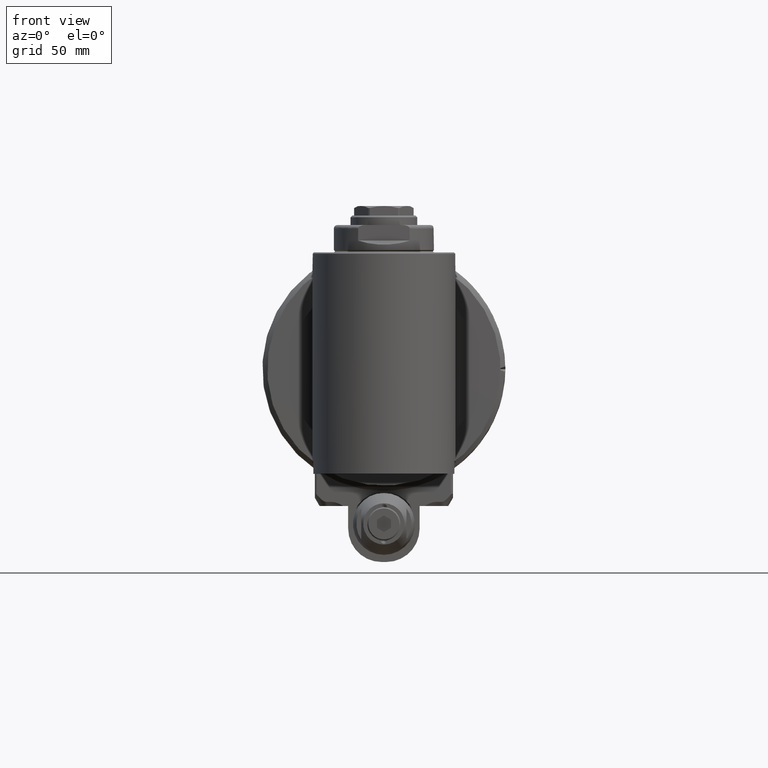
[diagram: clean part render]
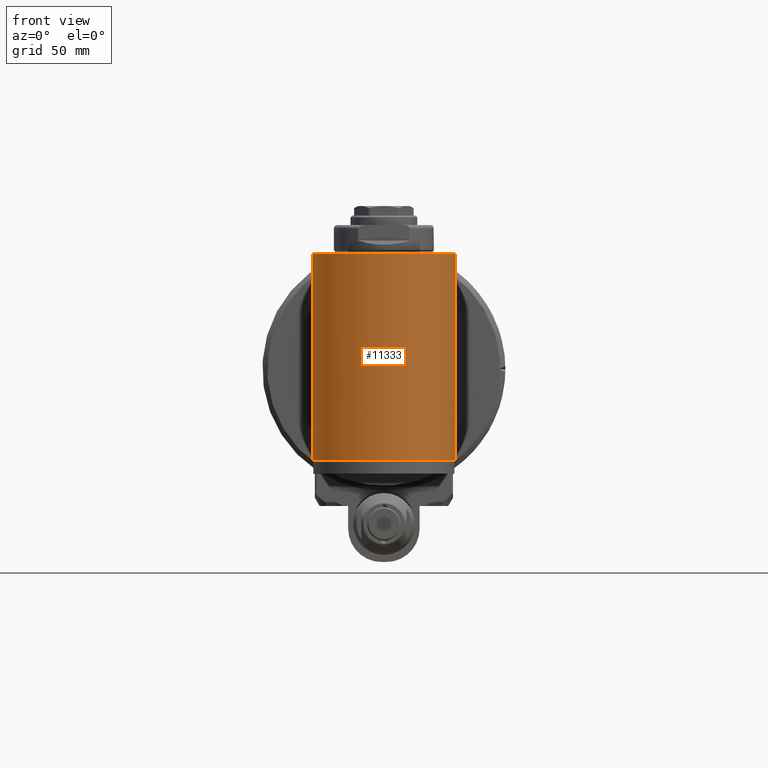
[diagram: same view with one face highlighted and labeled with its STEP entity id]
A machine part, front view. The second image highlights one B-rep face of the part: STEP entity #11333.
In plain terms, the highlighted cylindrical surface (bore or boss wall) has radius 30 mm, axis along (0, -0, 1).
Its self-contained STEP definition (entity closure, byte-faithful):
#988=FACE_OUTER_BOUND('',#1718,.T.);
#1718=EDGE_LOOP('',(#7705,#7706,#7707,#7708,#7709,#7710,#7711,#7712,#7713));
#2578=LINE('',#17326,#3353);
#2579=LINE('',#17330,#3354);
#2580=LINE('',#17334,#3355);
#3353=VECTOR('',#13619,30.);
#3354=VECTOR('',#13622,80.5);
#3355=VECTOR('',#13625,80.5);
#4128=CIRCLE('',#12145,30.);
#4129=CIRCLE('',#12146,30.);
#4130=CIRCLE('',#12147,30.);
#4131=CIRCLE('',#12148,30.);
#4132=CIRCLE('',#12149,30.);
#4845=VERTEX_POINT('',#17321);
#4846=VERTEX_POINT('',#17322);
#4847=VERTEX_POINT('',#17325);
#4848=VERTEX_POINT('',#17327);
#4849=VERTEX_POINT('',#17329);
#4850=VERTEX_POINT('',#17331);
#4851=VERTEX_POINT('',#17333);
#5982=EDGE_CURVE('',#4845,#4846,#4128,.T.);
#5983=EDGE_CURVE('',#4846,#4845,#4129,.T.);
#5984=EDGE_CURVE('',#4846,#4847,#2578,.T.);
#5985=EDGE_CURVE('',#4848,#4847,#4130,.T.);
#5986=EDGE_CURVE('',#4849,#4848,#2579,.T.);
#5987=EDGE_CURVE('',#4850,#4849,#4131,.T.);
#5988=EDGE_CURVE('',#4851,#4850,#2580,.T.);
#5989=EDGE_CURVE('',#4847,#4851,#4132,.T.);
#7705=ORIENTED_EDGE('',*,*,#5982,.F.);
#7706=ORIENTED_EDGE('',*,*,#5983,.F.);
#7707=ORIENTED_EDGE('',*,*,#5984,.T.);
#7708=ORIENTED_EDGE('',*,*,#5985,.F.);
#7709=ORIENTED_EDGE('',*,*,#5986,.F.);
#7710=ORIENTED_EDGE('',*,*,#5987,.F.);
#7711=ORIENTED_EDGE('',*,*,#5988,.F.);
#7712=ORIENTED_EDGE('',*,*,#5989,.F.);
#7713=ORIENTED_EDGE('',*,*,#5984,.F.);
#11129=CYLINDRICAL_SURFACE('',#12144,30.);
#11333=ADVANCED_FACE('',(#988),#11129,.T.);
#12144=AXIS2_PLACEMENT_3D('',#17320,#13613,#13614);
#12145=AXIS2_PLACEMENT_3D('',#17323,#13615,#13616);
#12146=AXIS2_PLACEMENT_3D('',#17324,#13617,#13618);
#12147=AXIS2_PLACEMENT_3D('',#17328,#13620,#13621);
#12148=AXIS2_PLACEMENT_3D('',#17332,#13623,#13624);
#12149=AXIS2_PLACEMENT_3D('',#17335,#13626,#13627);
#13613=DIRECTION('center_axis',(1.,0.,0.));
#13614=DIRECTION('ref_axis',(0.,-1.,0.));
#13615=DIRECTION('center_axis',(1.,0.,0.));
#13616=DIRECTION('ref_axis',(0.,-0.500000000000017,-0.866025403784429));
#13617=DIRECTION('center_axis',(1.,0.,0.));
#13618=DIRECTION('ref_axis',(0.,-0.500000000000017,-0.866025403784429));
#13619=DIRECTION('',(-1.,0.,0.));
#13620=DIRECTION('center_axis',(-1.,0.,0.));
#13621=DIRECTION('ref_axis',(0.,5.104065318543E-14,1.));
#13622=DIRECTION('',(1.,0.,0.));
#13623=DIRECTION('center_axis',(-1.,0.,0.));
#13624=DIRECTION('ref_axis',(0.,0.,-1.));
#13625=DIRECTION('',(-1.,0.,0.));
#13626=DIRECTION('center_axis',(-1.,0.,0.));
#13627=DIRECTION('ref_axis',(0.,5.104065318543E-14,1.));
#17320=CARTESIAN_POINT('Origin',(0.,-23.,-1.136868377216E-13));
#17321=CARTESIAN_POINT('',(37.66004178792,-38.,-25.98076211353));
#17322=CARTESIAN_POINT('',(37.66004178792,7.,-1.10012897324158E-13));
#17323=CARTESIAN_POINT('Origin',(37.66004178792,-23.,-1.136868377216E-13));
#17324=CARTESIAN_POINT('Origin',(37.66004178792,-23.,-1.136868377216E-13));
#17325=CARTESIAN_POINT('',(31.16004178792,7.,-1.10012897324158E-13));
#17326=CARTESIAN_POINT('',(0.,7.,-1.10012897324158E-13));
#17327=CARTESIAN_POINT('',(31.16004178792,-23.,30.));
#17328=CARTESIAN_POINT('Origin',(31.16004178792,-23.,-1.136868377216E-13));
#17329=CARTESIAN_POINT('',(-49.33995821208,-23.,30.));
#17330=CARTESIAN_POINT('',(-49.33995821208,-23.,30.));
#17331=CARTESIAN_POINT('',(-49.33995821208,-23.,-30.));
#17332=CARTESIAN_POINT('Origin',(-49.33995821208,-23.,-1.136868377216E-13));
#17333=CARTESIAN_POINT('',(31.16004178792,-23.,-30.));
#17334=CARTESIAN_POINT('',(31.16004178792,-23.,-30.));
#17335=CARTESIAN_POINT('Origin',(31.16004178792,-23.,-1.136868377216E-13));